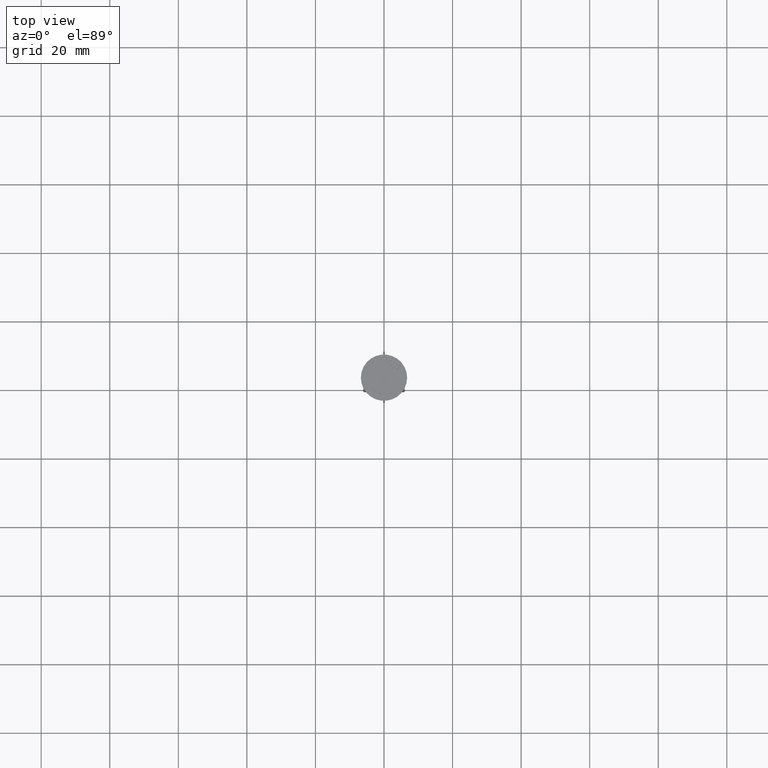
[diagram: clean part render]
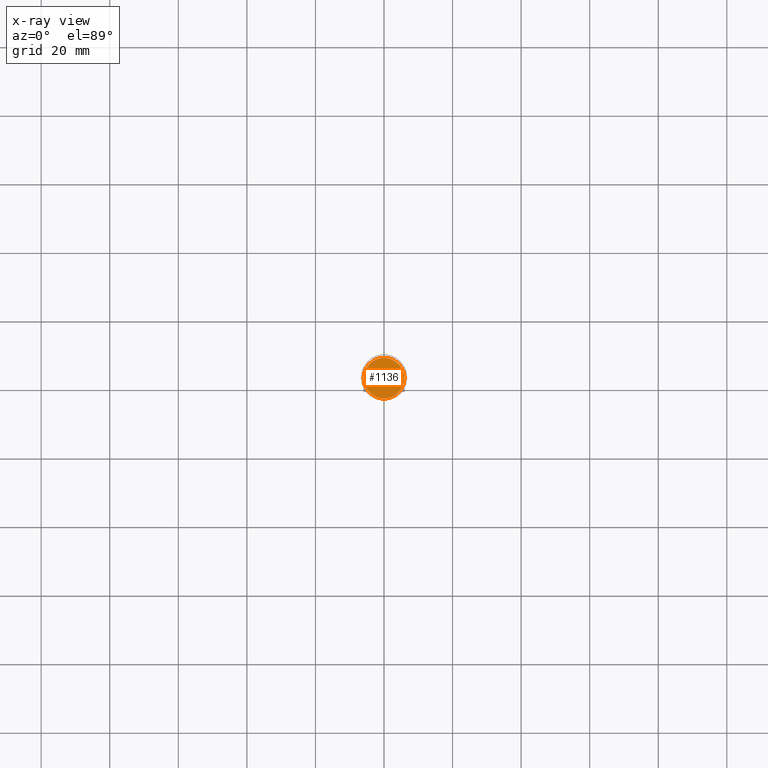
[diagram: x-ray — body ghosted, one internal face saturated and labeled with its STEP entity id]
A machine part, top view, then the same camera in x-ray: the body is ghosted and one INTERNAL B-rep face — a face not visible from any outside direction — is saturated and labeled: STEP entity #1136.
In plain terms, the highlighted planar face has unit normal (0, 0, -1).
Its self-contained STEP definition (entity closure, byte-faithful):
#3 = DIRECTION ( 'NONE',  ( -0.000000000000000000, -0.000000000000000000, 1.000000000000000000 ) ) ;
#27 = CARTESIAN_POINT ( 'NONE',  ( 0.000000000000000000, 0.000000000000000000, -10.50000000000000178 ) ) ;
#94 = AXIS2_PLACEMENT_3D ( 'NONE', #1625, #3, #887 ) ;
#235 = FACE_OUTER_BOUND ( 'NONE', #1300, .T. ) ;
#398 = DIRECTION ( 'NONE',  ( -1.000000000000000000, 0.000000000000000000, -0.000000000000000000 ) ) ;
#401 = CIRCLE ( 'NONE', #1283, 5.950000000000002842 ) ;
#436 = AXIS2_PLACEMENT_3D ( 'NONE', #27, #2197, #398 ) ;
#489 = EDGE_CURVE ( 'NONE', #1861, #742, #2281, .T. ) ;
#538 = ORIENTED_EDGE ( 'NONE', *, *, #489, .T. ) ;
#726 = ORIENTED_EDGE ( 'NONE', *, *, #1033, .T. ) ;
#742 = VERTEX_POINT ( 'NONE', #1604 ) ;
#785 = DIRECTION ( 'NONE',  ( -0.000000000000000000, -0.000000000000000000, 1.000000000000000000 ) ) ;
#887 = DIRECTION ( 'NONE',  ( -1.000000000000000000, 0.000000000000000000, 0.000000000000000000 ) ) ;
#1033 = EDGE_CURVE ( 'NONE', #742, #1861, #401, .T. ) ;
#1136 = ADVANCED_FACE ( 'NONE', ( #235 ), #1298, .F. ) ;
#1283 = AXIS2_PLACEMENT_3D ( 'NONE', #1684, #785, #1871 ) ;
#1298 = PLANE ( 'NONE',  #436 ) ;
#1300 = EDGE_LOOP ( 'NONE', ( #538, #726 ) ) ;
#1604 = CARTESIAN_POINT ( 'NONE',  ( 5.950000000000002842, 7.470345474798858237E-16, -10.50000000000000178 ) ) ;
#1625 = CARTESIAN_POINT ( 'NONE',  ( 0.000000000000000000, 0.000000000000000000, -10.50000000000000178 ) ) ;
#1684 = CARTESIAN_POINT ( 'NONE',  ( 0.000000000000000000, 0.000000000000000000, -10.50000000000000178 ) ) ;
#1861 = VERTEX_POINT ( 'NONE', #2001 ) ;
#1871 = DIRECTION ( 'NONE',  ( -1.000000000000000000, 0.000000000000000000, 0.000000000000000000 ) ) ;
#2001 = CARTESIAN_POINT ( 'NONE',  ( -5.950000000000002842, 0.000000000000000000, -10.50000000000000178 ) ) ;
#2197 = DIRECTION ( 'NONE',  ( 0.000000000000000000, 0.000000000000000000, -1.000000000000000000 ) ) ;
#2281 = CIRCLE ( 'NONE', #94, 5.950000000000002842 ) ;